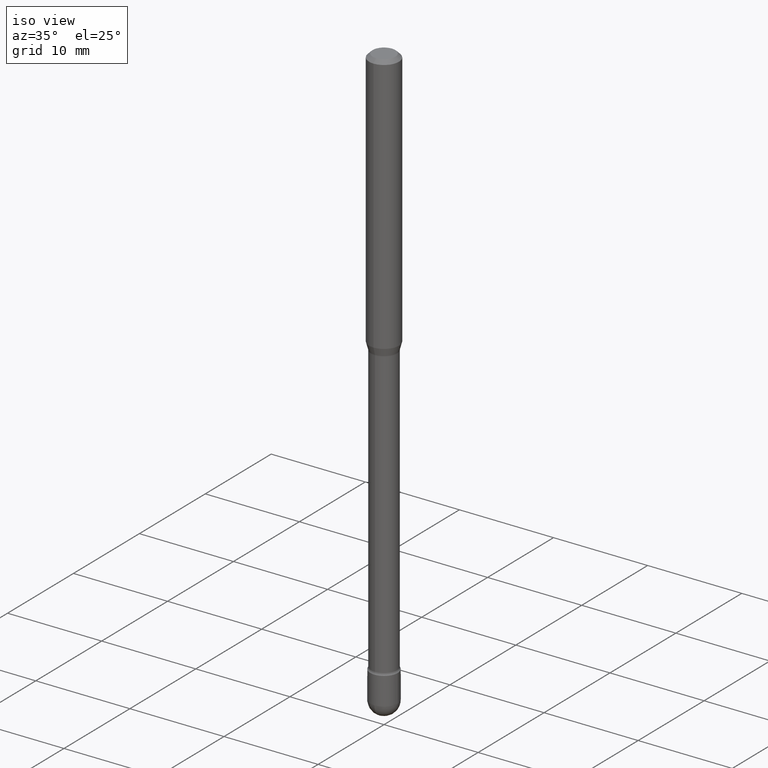
[diagram: clean part render]
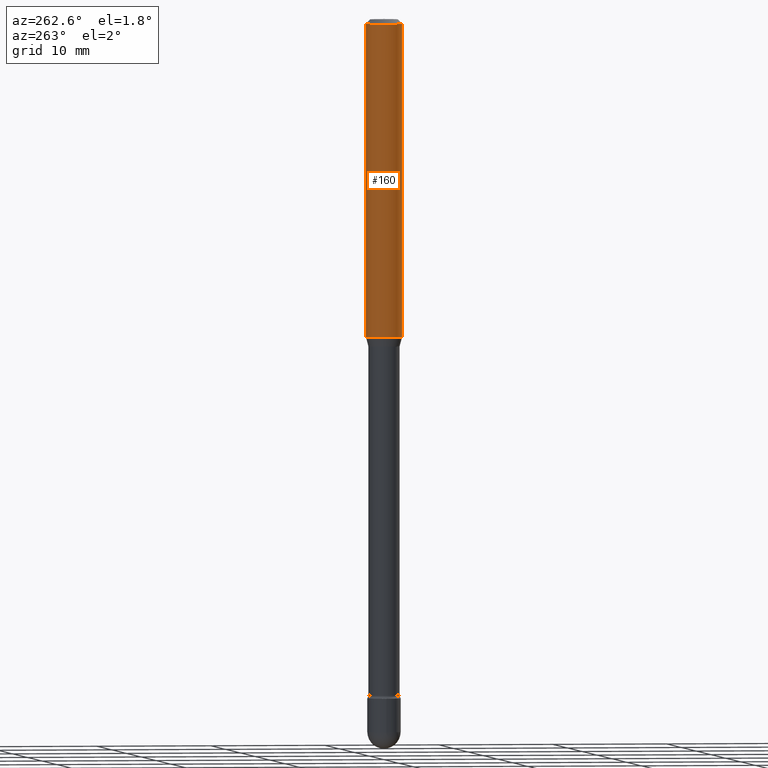
[diagram: tour spotlight — one face highlighted and labeled with its STEP entity id]
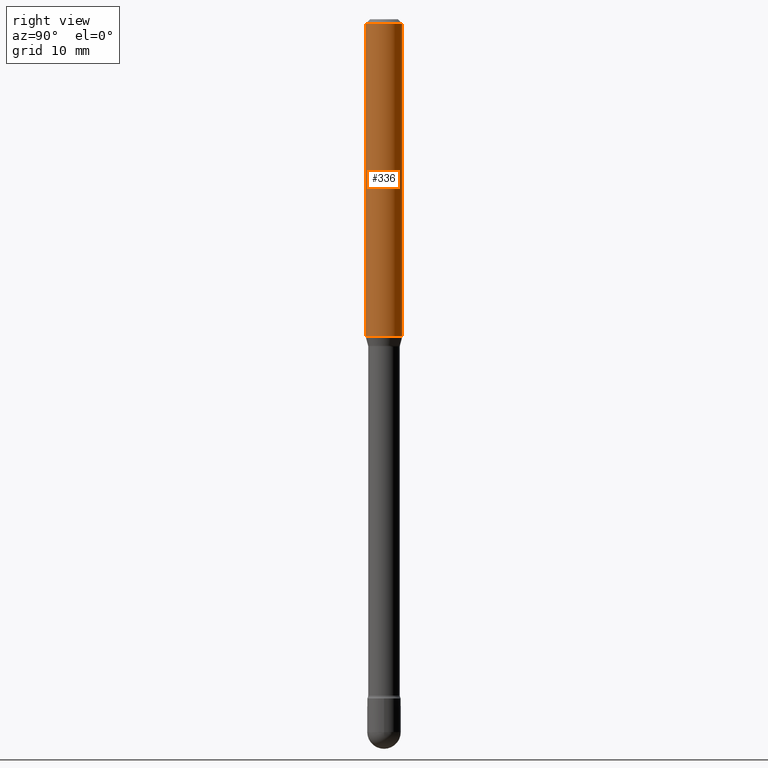
[diagram: tour spotlight — one face highlighted and labeled with its STEP entity id]
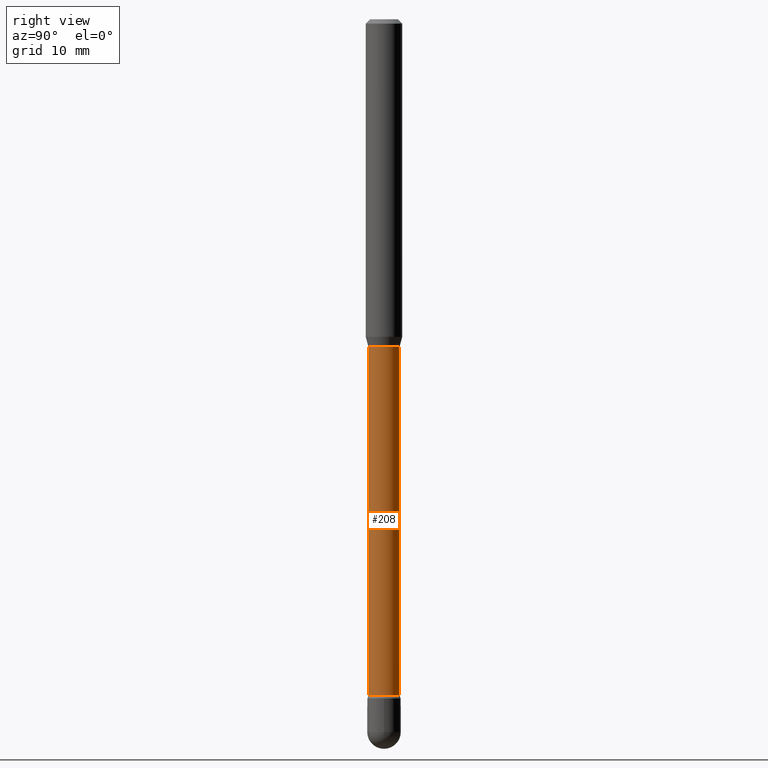
[diagram: tour spotlight — one face highlighted and labeled with its STEP entity id]
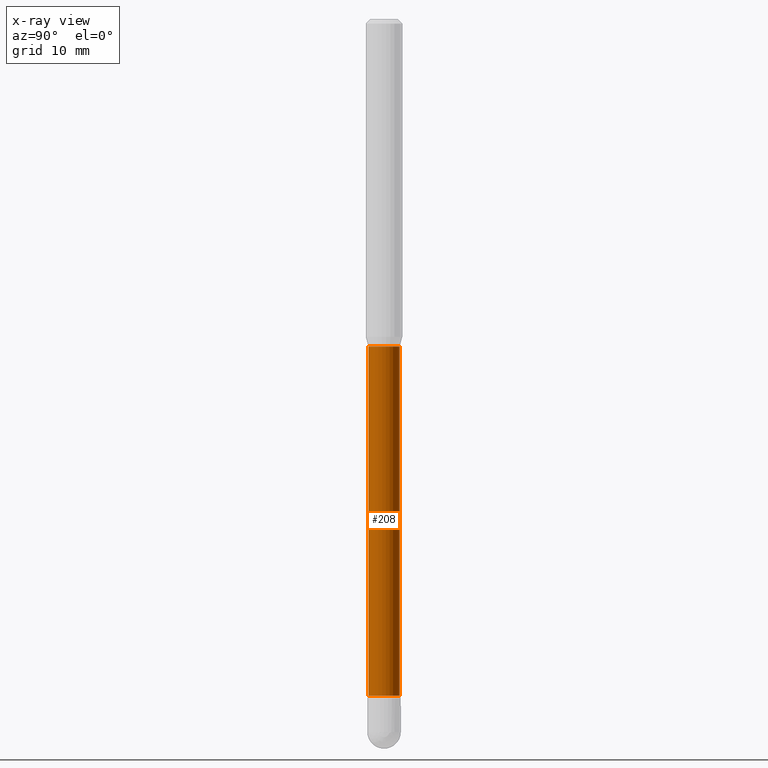
[diagram: x-ray of the same camera — body ghosted, this tour face saturated]
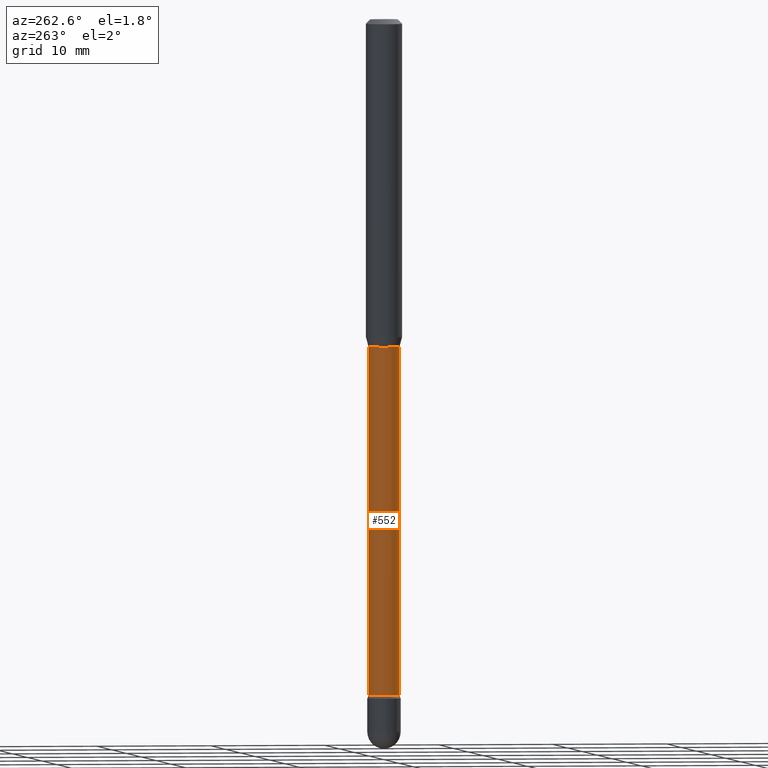
[diagram: tour spotlight — one face highlighted and labeled with its STEP entity id]
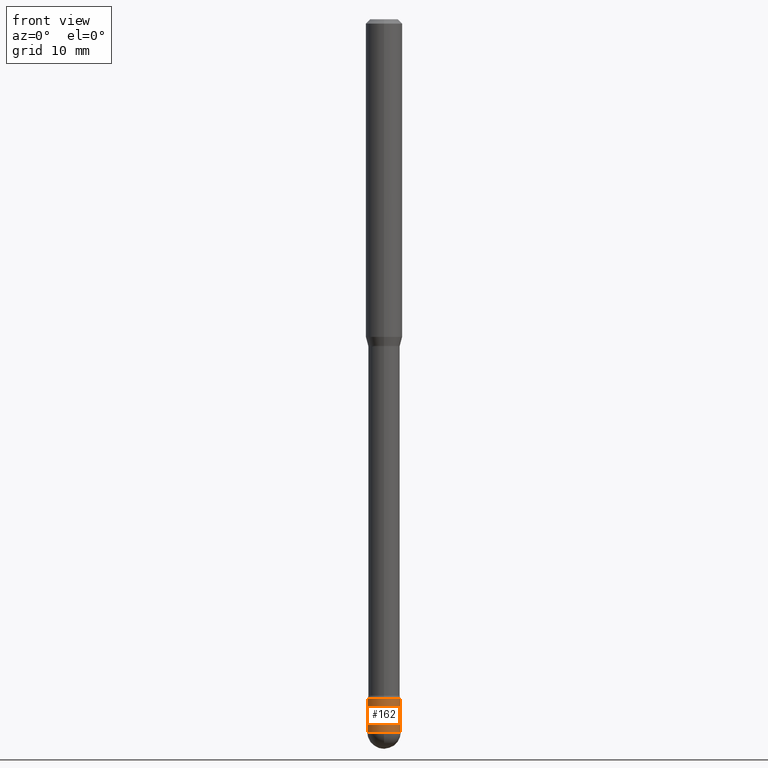
[diagram: tour spotlight — one face highlighted and labeled with its STEP entity id]
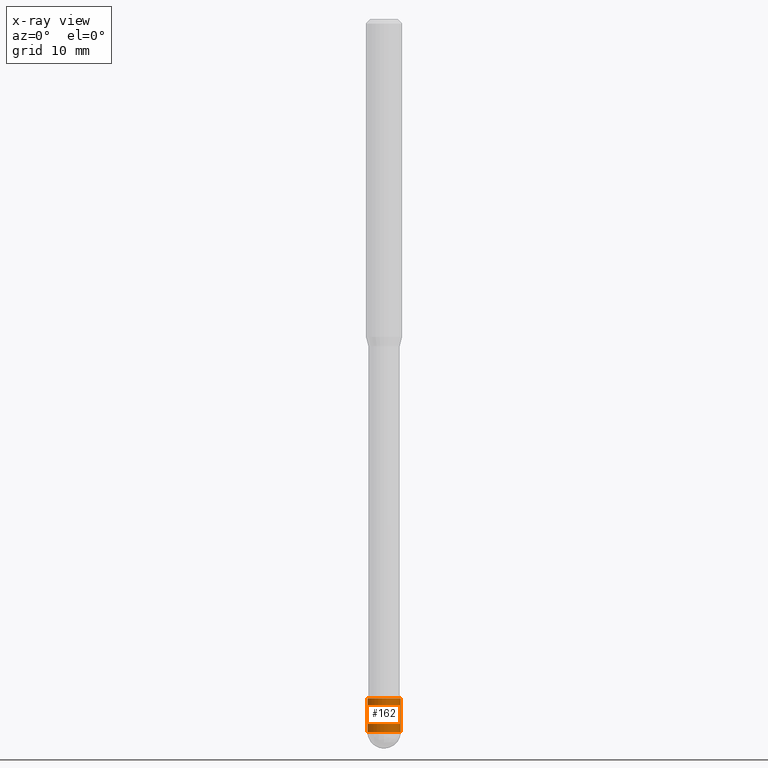
[diagram: x-ray of the same camera — body ghosted, this tour face saturated]
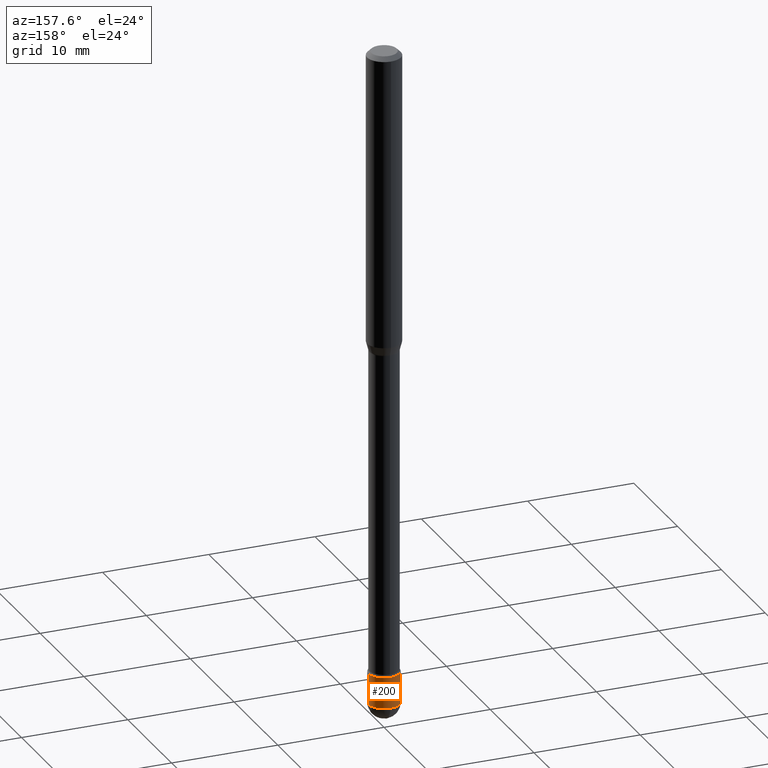
[diagram: tour spotlight — one face highlighted and labeled with its STEP entity id]
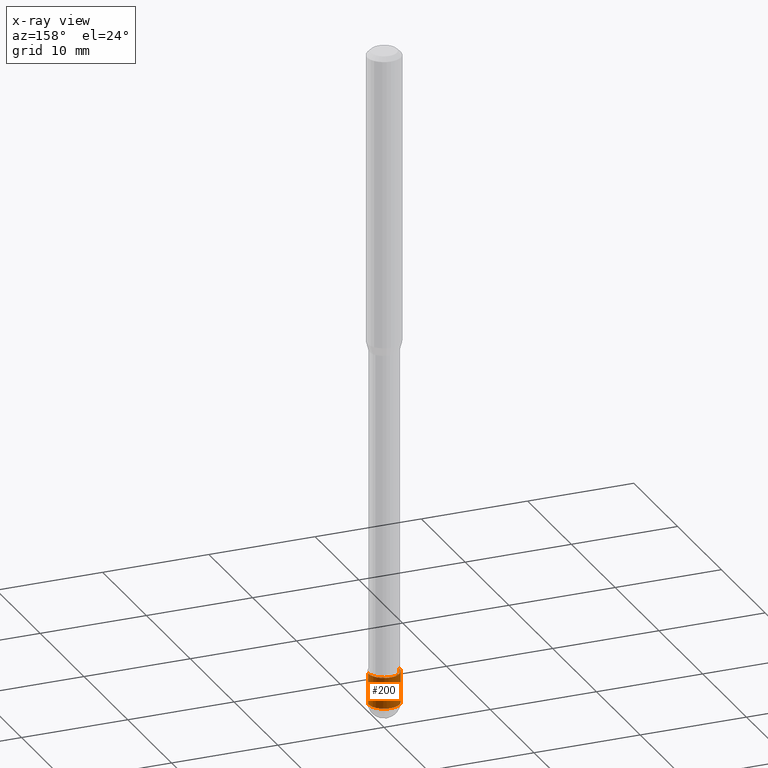
[diagram: x-ray of the same camera — body ghosted, this tour face saturated]
A machine part: a face-by-face anatomy tour. The part has 19 B-rep faces; the first image is the clean iso view, then the 6 largest visible faces are spotlighted one at a time (largest first), each with its STEP entity span.

Face 1 — auxiliary view, entity #160. In plain terms, the highlighted cylindrical surface (edge-blend (fillet) strip) has radius 1.5875 mm, axis along (-0, 0, 1).
Definition (entity closure, byte-faithful):
#2 = EDGE_LOOP ( 'NONE', ( #70, #46, #177, #335 ) ) ;
#6 = CYLINDRICAL_SURFACE ( 'NONE', #452, 0.06250000000000000000 ) ;
#46 = ORIENTED_EDGE ( 'NONE', *, *, #195, .T. ) ;
#53 = VERTEX_POINT ( 'NONE', #417 ) ;
#70 = ORIENTED_EDGE ( 'NONE', *, *, #555, .F. ) ;
#110 = CARTESIAN_POINT ( 'NONE',  ( 3.668187315654438745E-31, -5.237244768837902064E-17, -0.01500000000000008271 ) ) ;
#118 = CARTESIAN_POINT ( 'NONE',  ( 4.440892098500893388E-16, 0.06249999999999993755, -0.01500000000000030129 ) ) ;
#123 = DIRECTION ( 'NONE',  ( -6.982962677686265922E-15, -1.000000000000000000, 3.483106191921935554E-15 ) ) ;
#160 = ADVANCED_FACE ( 'NONE', ( #260 ), #6, .T. ) ;
#173 = DIRECTION ( 'NONE',  ( -2.445458210436279208E-29, 3.491496512558581868E-15, 1.000000000000000000 ) ) ;
#177 = ORIENTED_EDGE ( 'NONE', *, *, #471, .T. ) ;
#179 = VERTEX_POINT ( 'NONE', #478 ) ;
#195 = EDGE_CURVE ( 'NONE', #53, #438, #427, .T. ) ;
#207 = CARTESIAN_POINT ( 'NONE',  ( -4.364351673553650454E-16, -0.06250000000000381639, -1.088464170676042952 ) ) ;
#209 = LINE ( 'NONE', #389, #485 ) ;
#215 = CIRCLE ( 'NONE', #277, 0.06250000000000000000 ) ;
#260 = FACE_OUTER_BOUND ( 'NONE', #2, .T. ) ;
#274 = CARTESIAN_POINT ( 'NONE',  ( 2.661793642945445854E-29, -3.800368855960374326E-15, -1.088464170676043397 ) ) ;
#277 = AXIS2_PLACEMENT_3D ( 'NONE', #110, #344, #123 ) ;
#319 = CARTESIAN_POINT ( 'NONE',  ( 4.440892098500625669E-16, 0.06250000000000000000, 2.598548668563346965E-16 ) ) ;
#335 = ORIENTED_EDGE ( 'NONE', *, *, #490, .F. ) ;
#337 = DIRECTION ( 'NONE',  ( -2.445458210436279208E-29, 3.491496512558582263E-15, 1.000000000000000000 ) ) ;
#344 = DIRECTION ( 'NONE',  ( -2.445458210436279208E-29, 3.491496512558581868E-15, 1.000000000000000000 ) ) ;
#350 = CARTESIAN_POINT ( 'NONE',  ( -1.169113584055446105E-44, 1.669184350826100908E-30, 4.780733988912460139E-16 ) ) ;
#355 = AXIS2_PLACEMENT_3D ( 'NONE', #274, #524, #529 ) ;
#356 = DIRECTION ( 'NONE',  ( -2.445458210436279208E-29, 3.491496512558582263E-15, 1.000000000000000000 ) ) ;
#389 = CARTESIAN_POINT ( 'NONE',  ( -4.364351673553916201E-16, -0.06250000000000000000, 6.962919309261573807E-16 ) ) ;
#402 = VERTEX_POINT ( 'NONE', #118 ) ;
#414 = DIRECTION ( 'NONE',  ( -6.982962677686265922E-15, -1.000000000000000000, 3.491496512558581474E-15 ) ) ;
#417 = CARTESIAN_POINT ( 'NONE',  ( 4.440892098500890430E-16, 0.06249999999999618361, -1.088464170676043619 ) ) ;
#427 = CIRCLE ( 'NONE', #355, 0.06250000000000000000 ) ;
#438 = VERTEX_POINT ( 'NONE', #207 ) ;
#440 = LINE ( 'NONE', #319, #444 ) ;
#444 = VECTOR ( 'NONE', #356, 39.37007874015748143 ) ;
#452 = AXIS2_PLACEMENT_3D ( 'NONE', #350, #173, #414 ) ;
#471 = EDGE_CURVE ( 'NONE', #438, #179, #209, .T. ) ;
#478 = CARTESIAN_POINT ( 'NONE',  ( -4.364351673553912750E-16, -0.06250000000000005551, -0.01499999999999986587 ) ) ;
#485 = VECTOR ( 'NONE', #337, 39.37007874015748143 ) ;
#490 = EDGE_CURVE ( 'NONE', #402, #179, #215, .T. ) ;
#524 = DIRECTION ( 'NONE',  ( -2.445458210436279208E-29, 3.491496512558581868E-15, 1.000000000000000000 ) ) ;
#529 = DIRECTION ( 'NONE',  ( -6.982962677686265922E-15, -1.000000000000000000, 4.370956789862821150E-15 ) ) ;
#555 = EDGE_CURVE ( 'NONE', #53, #402, #440, .T. ) ;

Face 2 — right view, entity #336. In plain terms, the highlighted cylindrical surface (edge-blend (fillet) strip) has radius 1.5875 mm, axis along (-0, 0, 1).
Definition (entity closure, byte-faithful):
#1 = EDGE_CURVE ( 'NONE', #179, #402, #262, .T. ) ;
#20 = CARTESIAN_POINT ( 'NONE',  ( -1.169113584055446105E-44, 1.669184350826100908E-30, 4.780733988912460139E-16 ) ) ;
#51 = CARTESIAN_POINT ( 'NONE',  ( 2.661793642945445854E-29, -3.800368855960374326E-15, -1.088464170676043397 ) ) ;
#53 = VERTEX_POINT ( 'NONE', #417 ) ;
#64 = DIRECTION ( 'NONE',  ( -2.445458210436279208E-29, 3.491496512558581868E-15, 1.000000000000000000 ) ) ;
#66 = EDGE_CURVE ( 'NONE', #438, #53, #408, .T. ) ;
#92 = ORIENTED_EDGE ( 'NONE', *, *, #555, .T. ) ;
#118 = CARTESIAN_POINT ( 'NONE',  ( 4.440892098500893388E-16, 0.06249999999999993755, -0.01500000000000030129 ) ) ;
#179 = VERTEX_POINT ( 'NONE', #478 ) ;
#207 = CARTESIAN_POINT ( 'NONE',  ( -4.364351673553650454E-16, -0.06250000000000381639, -1.088464170676042952 ) ) ;
#209 = LINE ( 'NONE', #389, #485 ) ;
#220 = DIRECTION ( 'NONE',  ( -6.982962677686265922E-15, -1.000000000000000000, 4.370956789862821150E-15 ) ) ;
#236 = ORIENTED_EDGE ( 'NONE', *, *, #66, .T. ) ;
#249 = CYLINDRICAL_SURFACE ( 'NONE', #250, 0.06250000000000000000 ) ;
#250 = AXIS2_PLACEMENT_3D ( 'NONE', #20, #64, #281 ) ;
#262 = CIRCLE ( 'NONE', #443, 0.06250000000000000000 ) ;
#266 = DIRECTION ( 'NONE',  ( -2.445458210436279208E-29, 3.491496512558581868E-15, 1.000000000000000000 ) ) ;
#281 = DIRECTION ( 'NONE',  ( -6.982962677686265922E-15, -1.000000000000000000, 3.491496512558581474E-15 ) ) ;
#306 = ORIENTED_EDGE ( 'NONE', *, *, #1, .F. ) ;
#316 = DIRECTION ( 'NONE',  ( -6.982962677686265922E-15, -1.000000000000000000, 3.483106191921935554E-15 ) ) ;
#319 = CARTESIAN_POINT ( 'NONE',  ( 4.440892098500625669E-16, 0.06250000000000000000, 2.598548668563346965E-16 ) ) ;
#332 = AXIS2_PLACEMENT_3D ( 'NONE', #51, #266, #220 ) ;
#336 = ADVANCED_FACE ( 'NONE', ( #539 ), #249, .T. ) ;
#337 = DIRECTION ( 'NONE',  ( -2.445458210436279208E-29, 3.491496512558582263E-15, 1.000000000000000000 ) ) ;
#356 = DIRECTION ( 'NONE',  ( -2.445458210436279208E-29, 3.491496512558582263E-15, 1.000000000000000000 ) ) ;
#389 = CARTESIAN_POINT ( 'NONE',  ( -4.364351673553916201E-16, -0.06250000000000000000, 6.962919309261573807E-16 ) ) ;
#402 = VERTEX_POINT ( 'NONE', #118 ) ;
#408 = CIRCLE ( 'NONE', #332, 0.06250000000000000000 ) ;
#417 = CARTESIAN_POINT ( 'NONE',  ( 4.440892098500890430E-16, 0.06249999999999618361, -1.088464170676043619 ) ) ;
#423 = DIRECTION ( 'NONE',  ( -2.445458210436279208E-29, 3.491496512558581868E-15, 1.000000000000000000 ) ) ;
#438 = VERTEX_POINT ( 'NONE', #207 ) ;
#440 = LINE ( 'NONE', #319, #444 ) ;
#443 = AXIS2_PLACEMENT_3D ( 'NONE', #545, #423, #316 ) ;
#444 = VECTOR ( 'NONE', #356, 39.37007874015748143 ) ;
#471 = EDGE_CURVE ( 'NONE', #438, #179, #209, .T. ) ;
#478 = CARTESIAN_POINT ( 'NONE',  ( -4.364351673553912750E-16, -0.06250000000000005551, -0.01499999999999986587 ) ) ;
#485 = VECTOR ( 'NONE', #337, 39.37007874015748143 ) ;
#528 = EDGE_LOOP ( 'NONE', ( #236, #92, #306, #541 ) ) ;
#539 = FACE_OUTER_BOUND ( 'NONE', #528, .T. ) ;
#541 = ORIENTED_EDGE ( 'NONE', *, *, #471, .F. ) ;
#545 = CARTESIAN_POINT ( 'NONE',  ( 3.668187315654438745E-31, -5.237244768837902064E-17, -0.01500000000000008271 ) ) ;
#555 = EDGE_CURVE ( 'NONE', #53, #402, #440, .T. ) ;

Face 3 — right view, entity #208. An x-ray twin of the same camera follows (body ghosted, this face saturated) — the face is partly hidden behind the body. In plain terms, the highlighted cylindrical surface (edge-blend (fillet) strip) has radius 1.3729 mm, axis along (-0, 0, 1).
Definition (entity closure, byte-faithful):
#17 = CARTESIAN_POINT ( 'NONE',  ( -3.774291327289152172E-16, -0.05405000000000391436, -1.121974787463811074 ) ) ;
#25 = CARTESIAN_POINT ( 'NONE',  ( 3.963052108702531075E-16, 0.05404999999999203497, -2.317429341715430802 ) ) ;
#26 = EDGE_CURVE ( 'NONE', #137, #530, #174, .T. ) ;
#59 = ORIENTED_EDGE ( 'NONE', *, *, #26, .T. ) ;
#85 = DIRECTION ( 'NONE',  ( -6.982962677686265922E-15, -1.000000000000000000, 3.491496512558581474E-15 ) ) ;
#86 = VECTOR ( 'NONE', #151, 39.37007874015748143 ) ;
#88 = CARTESIAN_POINT ( 'NONE',  ( 2.743742455905876148E-29, -3.917371057608552189E-15, -1.121974787463811074 ) ) ;
#130 = CARTESIAN_POINT ( 'NONE',  ( -1.169113584055446105E-44, 1.669184350826100908E-30, 4.780733988912460139E-16 ) ) ;
#136 = FACE_OUTER_BOUND ( 'NONE', #216, .T. ) ;
#137 = VERTEX_POINT ( 'NONE', #412 ) ;
#139 = DIRECTION ( 'NONE',  ( -6.982962677686265922E-15, -1.000000000000000000, 2.527148930309216761E-15 ) ) ;
#143 = CIRCLE ( 'NONE', #312, 0.05404999999999999388 ) ;
#144 = VERTEX_POINT ( 'NONE', #270 ) ;
#151 = DIRECTION ( 'NONE',  ( -2.445458210436279208E-29, 3.491496512558582263E-15, 1.000000000000000000 ) ) ;
#163 = AXIS2_PLACEMENT_3D ( 'NONE', #413, #519, #393 ) ;
#168 = ORIENTED_EDGE ( 'NONE', *, *, #311, .F. ) ;
#174 = CIRCLE ( 'NONE', #163, 0.05405000000000013266 ) ;
#208 = ADVANCED_FACE ( 'NONE', ( #136 ), #352, .T. ) ;
#216 = EDGE_LOOP ( 'NONE', ( #59, #523, #288, #168 ) ) ;
#232 = EDGE_CURVE ( 'NONE', #264, #144, #143, .T. ) ;
#264 = VERTEX_POINT ( 'NONE', #17 ) ;
#270 = CARTESIAN_POINT ( 'NONE',  ( 3.840483486783911022E-16, 0.05404999999999607341, -1.121974787463811296 ) ) ;
#288 = ORIENTED_EDGE ( 'NONE', *, *, #232, .F. ) ;
#311 = EDGE_CURVE ( 'NONE', #137, #264, #456, .T. ) ;
#312 = AXIS2_PLACEMENT_3D ( 'NONE', #88, #489, #139 ) ;
#328 = LINE ( 'NONE', #540, #86 ) ;
#352 = CYLINDRICAL_SURFACE ( 'NONE', #385, 0.05405000000000006327 ) ;
#359 = EDGE_CURVE ( 'NONE', #530, #144, #328, .T. ) ;
#369 = DIRECTION ( 'NONE',  ( -2.445458210436279208E-29, 3.491496512558582263E-15, 1.000000000000000000 ) ) ;
#372 = CARTESIAN_POINT ( 'NONE',  ( -3.774291327289431232E-16, -0.05405000000000006327, 6.667887853950376346E-16 ) ) ;
#385 = AXIS2_PLACEMENT_3D ( 'NONE', #130, #483, #85 ) ;
#393 = DIRECTION ( 'NONE',  ( -6.982962677686265922E-15, -1.000000000000000000, 5.054297860618420899E-15 ) ) ;
#412 = CARTESIAN_POINT ( 'NONE',  ( -3.774291327288869168E-16, -0.05405000000000822341, -2.317429341715430358 ) ) ;
#413 = CARTESIAN_POINT ( 'NONE',  ( 5.667176610803941573E-29, -8.091296464700355327E-15, -2.317429341715430802 ) ) ;
#420 = VECTOR ( 'NONE', #369, 39.37007874015748143 ) ;
#456 = LINE ( 'NONE', #372, #420 ) ;
#483 = DIRECTION ( 'NONE',  ( -2.445458210436279208E-29, 3.491496512558581868E-15, 1.000000000000000000 ) ) ;
#489 = DIRECTION ( 'NONE',  ( -2.445458210436279208E-29, 3.491496512558581868E-15, 1.000000000000000000 ) ) ;
#519 = DIRECTION ( 'NONE',  ( -2.445458210436279208E-29, 3.491496512558581868E-15, 1.000000000000000000 ) ) ;
#523 = ORIENTED_EDGE ( 'NONE', *, *, #359, .T. ) ;
#530 = VERTEX_POINT ( 'NONE', #25 ) ;
#540 = CARTESIAN_POINT ( 'NONE',  ( 3.840483486783345014E-16, 0.05405000000000006327, 2.893580123874544918E-16 ) ) ;

Face 4 — auxiliary view, entity #552. In plain terms, the highlighted cylindrical surface (edge-blend (fillet) strip) has radius 1.3729 mm, axis along (-0, 0, 1).
Definition (entity closure, byte-faithful):
#9 = AXIS2_PLACEMENT_3D ( 'NONE', #227, #488, #313 ) ;
#17 = CARTESIAN_POINT ( 'NONE',  ( -3.774291327289152172E-16, -0.05405000000000391436, -1.121974787463811074 ) ) ;
#25 = CARTESIAN_POINT ( 'NONE',  ( 3.963052108702531075E-16, 0.05404999999999203497, -2.317429341715430802 ) ) ;
#29 = FACE_OUTER_BOUND ( 'NONE', #400, .T. ) ;
#57 = EDGE_CURVE ( 'NONE', #144, #264, #243, .T. ) ;
#74 = DIRECTION ( 'NONE',  ( -2.445458210436279208E-29, 3.491496512558581868E-15, 1.000000000000000000 ) ) ;
#86 = VECTOR ( 'NONE', #151, 39.37007874015748143 ) ;
#137 = VERTEX_POINT ( 'NONE', #412 ) ;
#141 = ORIENTED_EDGE ( 'NONE', *, *, #311, .T. ) ;
#144 = VERTEX_POINT ( 'NONE', #270 ) ;
#151 = DIRECTION ( 'NONE',  ( -2.445458210436279208E-29, 3.491496512558582263E-15, 1.000000000000000000 ) ) ;
#152 = CARTESIAN_POINT ( 'NONE',  ( 5.667176610803941573E-29, -8.091296464700355327E-15, -2.317429341715430802 ) ) ;
#227 = CARTESIAN_POINT ( 'NONE',  ( -1.169113584055446105E-44, 1.669184350826100908E-30, 4.780733988912460139E-16 ) ) ;
#243 = CIRCLE ( 'NONE', #419, 0.05404999999999999388 ) ;
#264 = VERTEX_POINT ( 'NONE', #17 ) ;
#270 = CARTESIAN_POINT ( 'NONE',  ( 3.840483486783911022E-16, 0.05404999999999607341, -1.121974787463811296 ) ) ;
#299 = ORIENTED_EDGE ( 'NONE', *, *, #359, .F. ) ;
#311 = EDGE_CURVE ( 'NONE', #137, #264, #456, .T. ) ;
#313 = DIRECTION ( 'NONE',  ( -6.982962677686265922E-15, -1.000000000000000000, 3.491496512558581474E-15 ) ) ;
#328 = LINE ( 'NONE', #540, #86 ) ;
#349 = CYLINDRICAL_SURFACE ( 'NONE', #9, 0.05405000000000006327 ) ;
#359 = EDGE_CURVE ( 'NONE', #530, #144, #328, .T. ) ;
#369 = DIRECTION ( 'NONE',  ( -2.445458210436279208E-29, 3.491496512558582263E-15, 1.000000000000000000 ) ) ;
#372 = CARTESIAN_POINT ( 'NONE',  ( -3.774291327289431232E-16, -0.05405000000000006327, 6.667887853950376346E-16 ) ) ;
#376 = DIRECTION ( 'NONE',  ( -6.982962677686265922E-15, -1.000000000000000000, 5.054297860618420899E-15 ) ) ;
#379 = DIRECTION ( 'NONE',  ( -2.445458210436279208E-29, 3.491496512558581868E-15, 1.000000000000000000 ) ) ;
#390 = ORIENTED_EDGE ( 'NONE', *, *, #57, .F. ) ;
#400 = EDGE_LOOP ( 'NONE', ( #299, #544, #141, #390 ) ) ;
#412 = CARTESIAN_POINT ( 'NONE',  ( -3.774291327288869168E-16, -0.05405000000000822341, -2.317429341715430358 ) ) ;
#419 = AXIS2_PLACEMENT_3D ( 'NONE', #527, #379, #517 ) ;
#420 = VECTOR ( 'NONE', #369, 39.37007874015748143 ) ;
#455 = EDGE_CURVE ( 'NONE', #530, #137, #467, .T. ) ;
#456 = LINE ( 'NONE', #372, #420 ) ;
#467 = CIRCLE ( 'NONE', #514, 0.05405000000000013266 ) ;
#488 = DIRECTION ( 'NONE',  ( -2.445458210436279208E-29, 3.491496512558581868E-15, 1.000000000000000000 ) ) ;
#514 = AXIS2_PLACEMENT_3D ( 'NONE', #152, #74, #376 ) ;
#517 = DIRECTION ( 'NONE',  ( -6.982962677686265922E-15, -1.000000000000000000, 2.527148930309216761E-15 ) ) ;
#527 = CARTESIAN_POINT ( 'NONE',  ( 2.743742455905876148E-29, -3.917371057608552189E-15, -1.121974787463811074 ) ) ;
#530 = VERTEX_POINT ( 'NONE', #25 ) ;
#540 = CARTESIAN_POINT ( 'NONE',  ( 3.840483486783345014E-16, 0.05405000000000006327, 2.893580123874544918E-16 ) ) ;
#544 = ORIENTED_EDGE ( 'NONE', *, *, #455, .T. ) ;
#552 = ADVANCED_FACE ( 'NONE', ( #29 ), #349, .T. ) ;

Face 5 — front view, entity #162. An x-ray twin of the same camera follows (body ghosted, this face saturated) — the face is partly hidden behind the body. In plain terms, the highlighted cylindrical surface (edge-blend (fillet) strip) has radius 1.4605 mm, axis along (-0, 0, 1).
Definition (entity closure, byte-faithful):
#5 = CARTESIAN_POINT ( 'NONE',  ( 0.000000000000000000, 0.000000000000000000, 0.000000000000000000 ) ) ;
#10 = CARTESIAN_POINT ( 'NONE',  ( 5.973057559107196227E-29, -8.527943170124383355E-15, -2.442499999999999893 ) ) ;
#11 = EDGE_CURVE ( 'NONE', #115, #375, #551, .T. ) ;
#23 = AXIS2_PLACEMENT_3D ( 'NONE', #301, #24, #430 ) ;
#24 = DIRECTION ( 'NONE',  ( -2.445468806185136597E-29, 3.491481338843145583E-15, 1.000000000000000000 ) ) ;
#34 = CARTESIAN_POINT ( 'NONE',  ( -0.05750000000000000250, -7.917748049744133834E-15, -2.326999999999999957 ) ) ;
#48 = VERTEX_POINT ( 'NONE', #34 ) ;
#65 = CARTESIAN_POINT ( 'NONE',  ( -4.085620730619980656E-16, -0.05750000000000856509, -2.442499999999999893 ) ) ;
#115 = VERTEX_POINT ( 'NONE', #454 ) ;
#121 = ORIENTED_EDGE ( 'NONE', *, *, #153, .T. ) ;
#142 = CARTESIAN_POINT ( 'NONE',  ( -0.05750000000000000250, 4.085620730620576246E-16, -2.828387676896570712E-30 ) ) ;
#153 = EDGE_CURVE ( 'NONE', #331, #115, #434, .T. ) ;
#155 = AXIS2_PLACEMENT_3D ( 'NONE', #10, #182, #363 ) ;
#162 = ADVANCED_FACE ( 'NONE', ( #224 ), #533, .T. ) ;
#170 = ORIENTED_EDGE ( 'NONE', *, *, #395, .F. ) ;
#180 = DIRECTION ( 'NONE',  ( -2.445468806185136877E-29, 3.491481338843145188E-15, 1.000000000000000000 ) ) ;
#182 = DIRECTION ( 'NONE',  ( -2.445468806185136597E-29, 3.491481338843145583E-15, 1.000000000000000000 ) ) ;
#185 = DIRECTION ( 'NONE',  ( -2.445468806185136597E-29, 3.491481338843145583E-15, 1.000000000000000000 ) ) ;
#197 = AXIS2_PLACEMENT_3D ( 'NONE', #5, #448, #315 ) ;
#213 = VECTOR ( 'NONE', #327, 39.37007874015748143 ) ;
#224 = FACE_OUTER_BOUND ( 'NONE', #235, .T. ) ;
#230 = ORIENTED_EDGE ( 'NONE', *, *, #347, .T. ) ;
#235 = EDGE_LOOP ( 'NONE', ( #513, #230, #121, #280, #170 ) ) ;
#280 = ORIENTED_EDGE ( 'NONE', *, *, #11, .T. ) ;
#282 = EDGE_CURVE ( 'NONE', #486, #48, #424, .T. ) ;
#301 = CARTESIAN_POINT ( 'NONE',  ( 5.690605911992812897E-29, -8.124677075487999464E-15, -2.326999999999999957 ) ) ;
#303 = CIRCLE ( 'NONE', #23, 0.05750000000000000250 ) ;
#315 = DIRECTION ( 'NONE',  ( 1.000000000000000000, -6.982962677686265922E-15, 4.876176775795935232E-29 ) ) ;
#322 = VECTOR ( 'NONE', #180, 39.37007874015748143 ) ;
#327 = DIRECTION ( 'NONE',  ( -2.445468806185136877E-29, 3.491481338843145188E-15, 1.000000000000000000 ) ) ;
#331 = VERTEX_POINT ( 'NONE', #65 ) ;
#342 = CIRCLE ( 'NONE', #507, 0.05750000000000000250 ) ;
#347 = EDGE_CURVE ( 'NONE', #486, #331, #342, .T. ) ;
#363 = DIRECTION ( 'NONE',  ( 1.000000000000000000, -6.982962677686273810E-15, 0.000000000000000000 ) ) ;
#368 = DIRECTION ( 'NONE',  ( 1.000000000000000000, -6.982962677686273810E-15, 0.000000000000000000 ) ) ;
#375 = VERTEX_POINT ( 'NONE', #458 ) ;
#387 = CARTESIAN_POINT ( 'NONE',  ( -0.05750000000000000250, -7.917748049744133834E-15, -2.442499999999999893 ) ) ;
#395 = EDGE_CURVE ( 'NONE', #48, #375, #303, .T. ) ;
#418 = CARTESIAN_POINT ( 'NONE',  ( 5.973057559107196227E-29, -8.527943170124383355E-15, -2.442499999999999893 ) ) ;
#424 = LINE ( 'NONE', #142, #213 ) ;
#430 = DIRECTION ( 'NONE',  ( 1.000000000000000000, -6.982962677686273810E-15, 0.000000000000000000 ) ) ;
#434 = CIRCLE ( 'NONE', #155, 0.05750000000000000250 ) ;
#448 = DIRECTION ( 'NONE',  ( -2.445468806185136597E-29, 3.491481338843145583E-15, 1.000000000000000000 ) ) ;
#454 = CARTESIAN_POINT ( 'NONE',  ( 0.05750000000000000250, -8.727830476773152219E-15, -2.442499999999999893 ) ) ;
#458 = CARTESIAN_POINT ( 'NONE',  ( 0.05750000000000000250, -8.526197429454961062E-15, -2.326999999999999957 ) ) ;
#486 = VERTEX_POINT ( 'NONE', #387 ) ;
#503 = CARTESIAN_POINT ( 'NONE',  ( 0.05750000000000000250, -4.015203539669603161E-16, 2.803801646082662941E-30 ) ) ;
#507 = AXIS2_PLACEMENT_3D ( 'NONE', #418, #185, #368 ) ;
#513 = ORIENTED_EDGE ( 'NONE', *, *, #282, .F. ) ;
#533 = CYLINDRICAL_SURFACE ( 'NONE', #197, 0.05750000000000000250 ) ;
#551 = LINE ( 'NONE', #503, #322 ) ;

Face 6 — auxiliary view, entity #200. An x-ray twin of the same camera follows (body ghosted, this face saturated) — the face is partly hidden behind the body. In plain terms, the highlighted cylindrical surface (edge-blend (fillet) strip) has radius 1.4605 mm, axis along (-0, 0, 1).
Definition (entity closure, byte-faithful):
#3 = CYLINDRICAL_SURFACE ( 'NONE', #557, 0.05750000000000000250 ) ;
#11 = EDGE_CURVE ( 'NONE', #115, #375, #551, .T. ) ;
#34 = CARTESIAN_POINT ( 'NONE',  ( -0.05750000000000000250, -7.917748049744133834E-15, -2.326999999999999957 ) ) ;
#40 = FACE_OUTER_BOUND ( 'NONE', #108, .T. ) ;
#48 = VERTEX_POINT ( 'NONE', #34 ) ;
#55 = ORIENTED_EDGE ( 'NONE', *, *, #300, .T. ) ;
#56 = CARTESIAN_POINT ( 'NONE',  ( 4.015203539670203189E-16, 0.05749999999999150929, -2.442500000000000338 ) ) ;
#101 = DIRECTION ( 'NONE',  ( -2.445468806185136597E-29, 3.491481338843145583E-15, 1.000000000000000000 ) ) ;
#105 = CIRCLE ( 'NONE', #292, 0.05750000000000000250 ) ;
#108 = EDGE_LOOP ( 'NONE', ( #55, #145, #242, #407, #381 ) ) ;
#112 = CIRCLE ( 'NONE', #525, 0.05750000000000000250 ) ;
#115 = VERTEX_POINT ( 'NONE', #454 ) ;
#142 = CARTESIAN_POINT ( 'NONE',  ( -0.05750000000000000250, 4.085620730620576246E-16, -2.828387676896570712E-30 ) ) ;
#145 = ORIENTED_EDGE ( 'NONE', *, *, #282, .T. ) ;
#147 = CARTESIAN_POINT ( 'NONE',  ( 5.690605911992812897E-29, -8.124677075487999464E-15, -2.326999999999999957 ) ) ;
#169 = DIRECTION ( 'NONE',  ( 1.000000000000000000, -6.982962677686265922E-15, 4.876176775795935232E-29 ) ) ;
#180 = DIRECTION ( 'NONE',  ( -2.445468806185136877E-29, 3.491481338843145188E-15, 1.000000000000000000 ) ) ;
#194 = DIRECTION ( 'NONE',  ( 1.000000000000000000, -6.982962677686273810E-15, 0.000000000000000000 ) ) ;
#200 = ADVANCED_FACE ( 'NONE', ( #40 ), #3, .T. ) ;
#213 = VECTOR ( 'NONE', #327, 39.37007874015748143 ) ;
#217 = CARTESIAN_POINT ( 'NONE',  ( 0.000000000000000000, 0.000000000000000000, 0.000000000000000000 ) ) ;
#237 = DIRECTION ( 'NONE',  ( -2.445468806185136597E-29, 3.491481338843145583E-15, 1.000000000000000000 ) ) ;
#242 = ORIENTED_EDGE ( 'NONE', *, *, #338, .F. ) ;
#282 = EDGE_CURVE ( 'NONE', #486, #48, #424, .T. ) ;
#287 = DIRECTION ( 'NONE',  ( -2.445468806185136597E-29, 3.491481338843145583E-15, 1.000000000000000000 ) ) ;
#291 = VERTEX_POINT ( 'NONE', #56 ) ;
#292 = AXIS2_PLACEMENT_3D ( 'NONE', #463, #287, #194 ) ;
#294 = EDGE_CURVE ( 'NONE', #115, #291, #105, .T. ) ;
#300 = EDGE_CURVE ( 'NONE', #291, #486, #112, .T. ) ;
#322 = VECTOR ( 'NONE', #180, 39.37007874015748143 ) ;
#323 = AXIS2_PLACEMENT_3D ( 'NONE', #147, #237, #426 ) ;
#327 = DIRECTION ( 'NONE',  ( -2.445468806185136877E-29, 3.491481338843145188E-15, 1.000000000000000000 ) ) ;
#338 = EDGE_CURVE ( 'NONE', #375, #48, #537, .T. ) ;
#370 = DIRECTION ( 'NONE',  ( 1.000000000000000000, -6.982962677686273810E-15, 0.000000000000000000 ) ) ;
#375 = VERTEX_POINT ( 'NONE', #458 ) ;
#381 = ORIENTED_EDGE ( 'NONE', *, *, #294, .T. ) ;
#387 = CARTESIAN_POINT ( 'NONE',  ( -0.05750000000000000250, -7.917748049744133834E-15, -2.442499999999999893 ) ) ;
#399 = DIRECTION ( 'NONE',  ( -2.445468806185136597E-29, 3.491481338843145583E-15, 1.000000000000000000 ) ) ;
#407 = ORIENTED_EDGE ( 'NONE', *, *, #11, .F. ) ;
#424 = LINE ( 'NONE', #142, #213 ) ;
#426 = DIRECTION ( 'NONE',  ( 1.000000000000000000, -6.982962677686273810E-15, 0.000000000000000000 ) ) ;
#454 = CARTESIAN_POINT ( 'NONE',  ( 0.05750000000000000250, -8.727830476773152219E-15, -2.442499999999999893 ) ) ;
#458 = CARTESIAN_POINT ( 'NONE',  ( 0.05750000000000000250, -8.526197429454961062E-15, -2.326999999999999957 ) ) ;
#463 = CARTESIAN_POINT ( 'NONE',  ( 5.973057559107196227E-29, -8.527943170124383355E-15, -2.442499999999999893 ) ) ;
#486 = VERTEX_POINT ( 'NONE', #387 ) ;
#503 = CARTESIAN_POINT ( 'NONE',  ( 0.05750000000000000250, -4.015203539669603161E-16, 2.803801646082662941E-30 ) ) ;
#525 = AXIS2_PLACEMENT_3D ( 'NONE', #547, #101, #370 ) ;
#537 = CIRCLE ( 'NONE', #323, 0.05750000000000000250 ) ;
#547 = CARTESIAN_POINT ( 'NONE',  ( 5.973057559107196227E-29, -8.527943170124383355E-15, -2.442499999999999893 ) ) ;
#551 = LINE ( 'NONE', #503, #322 ) ;
#557 = AXIS2_PLACEMENT_3D ( 'NONE', #217, #399, #169 ) ;